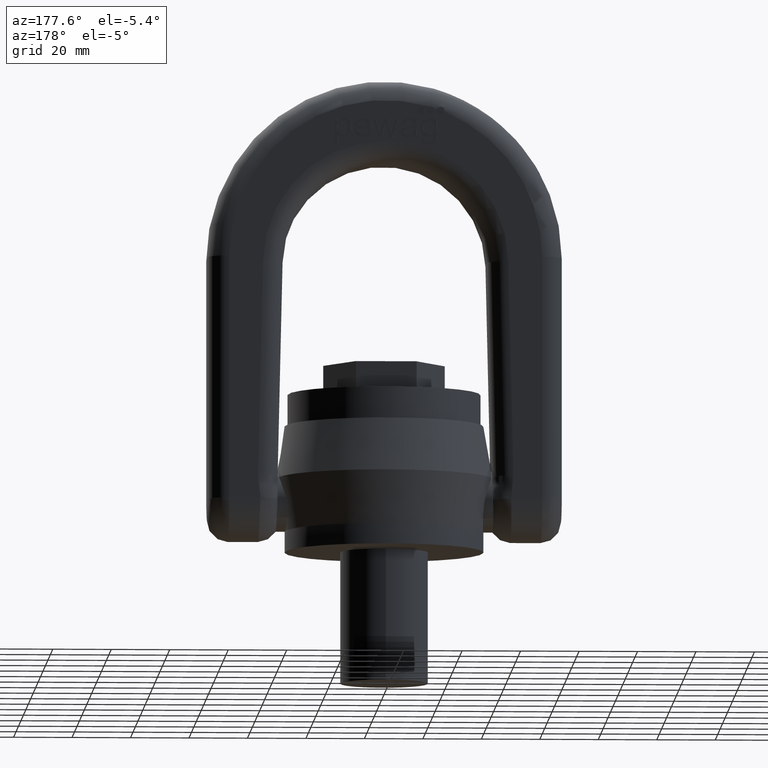
[diagram: clean part render]
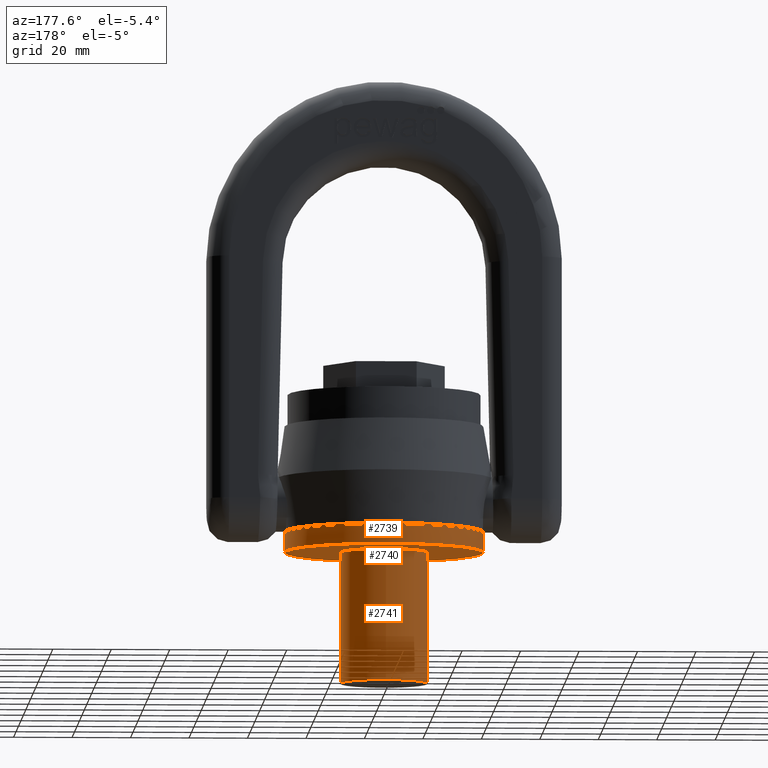
[diagram: same view with one multi-face feature highlighted, each face labeled with its STEP entity id]
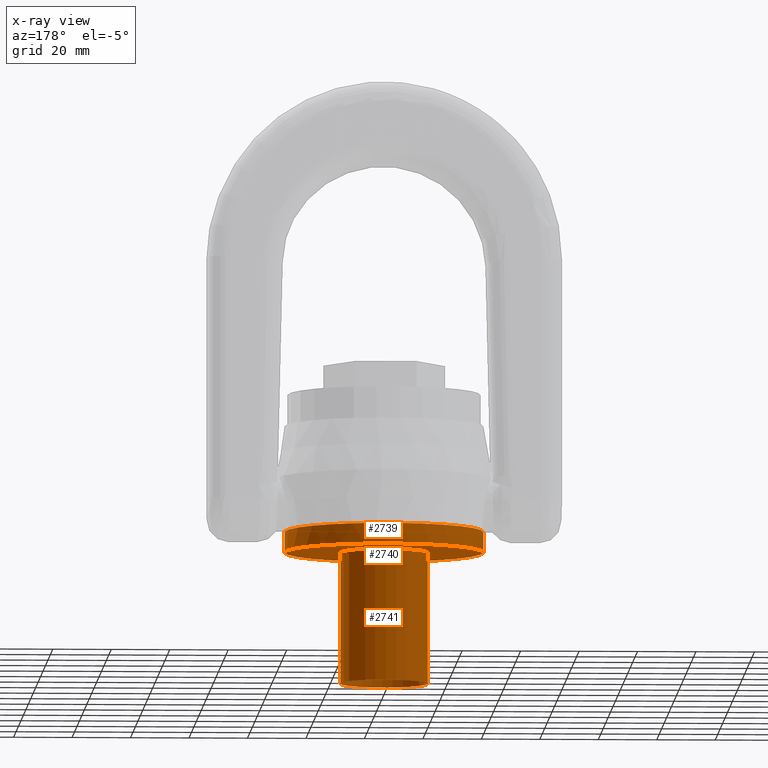
[diagram: x-ray of the same camera — body ghosted, the whole feature saturated]
A machine part, auxiliary view. The highlighted faces form ONE feature: a stepped (counterbored) hole: 2 coaxial cylindrical walls of radii 15 -> 34 mm joined by 1 annular planar shoulder face(s). The faces share edges in the B-rep.
The next image is the same camera in x-ray: the body ghosted and the whole hole feature saturated, so the bore chain is visible through the body.
Their STEP definitions:
[1] entity #2739 (Cylinder):
#2739=ADVANCED_FACE('',(#3001,#3002),#2979,.T.);
#2979=CYLINDRICAL_SURFACE('',#5604,34.);
#3001=FACE_BOUND('',#3063,.T.);
#3002=FACE_BOUND('',#3064,.T.);
#3063=EDGE_LOOP('',(#3339));
#3064=EDGE_LOOP('',(#3340));
#3339=ORIENTED_EDGE('',*,*,#4943,.T.);
#3340=ORIENTED_EDGE('',*,*,#4944,.F.);
#4543=VERTEX_POINT('',#6596);
#4544=VERTEX_POINT('',#6598);
#4943=EDGE_CURVE('',#4543,#4543,#5545,.T.);
#4944=EDGE_CURVE('',#4544,#4544,#5546,.T.);
#5545=CIRCLE('',#5602,34.);
#5546=CIRCLE('',#5603,34.);
#5602=AXIS2_PLACEMENT_3D('',#6595,#5810,#5811);
#5603=AXIS2_PLACEMENT_3D('',#6597,#5812,#5813);
#5604=AXIS2_PLACEMENT_3D('',#6599,#5814,#5815);
#5810=DIRECTION('',(0.,0.,-1.));
#5811=DIRECTION('',(-1.,0.,0.));
#5812=DIRECTION('',(0.,0.,-1.));
#5813=DIRECTION('',(-6.12323399573677E-17,1.,0.));
#5814=DIRECTION('',(0.,0.,-1.));
#5815=DIRECTION('',(-1.,0.,0.));
#6595=CARTESIAN_POINT('',(0.,0.,7.));
#6596=CARTESIAN_POINT('',(-34.,0.,7.));
#6597=CARTESIAN_POINT('',(0.,0.,0.));
#6598=CARTESIAN_POINT('',(-2.0818995585505E-15,34.,0.));
#6599=CARTESIAN_POINT('',(0.,0.,7.));
[2] entity #2741 (Cylinder):
#2741=ADVANCED_FACE('',(#3005,#3006),#2980,.T.);
#2980=CYLINDRICAL_SURFACE('',#5608,15.);
#3005=FACE_BOUND('',#3067,.T.);
#3006=FACE_BOUND('',#3068,.T.);
#3067=EDGE_LOOP('',(#3343));
#3068=EDGE_LOOP('',(#3344));
#3343=ORIENTED_EDGE('',*,*,#4946,.F.);
#3344=ORIENTED_EDGE('',*,*,#4945,.T.);
#4545=VERTEX_POINT('',#6601);
#4546=VERTEX_POINT('',#6604);
#4945=EDGE_CURVE('',#4545,#4545,#5547,.T.);
#4946=EDGE_CURVE('',#4546,#4546,#5548,.T.);
#5547=CIRCLE('',#5605,15.);
#5548=CIRCLE('',#5607,15.);
#5605=AXIS2_PLACEMENT_3D('',#6600,#5816,#5817);
#5607=AXIS2_PLACEMENT_3D('',#6603,#5820,#5821);
#5608=AXIS2_PLACEMENT_3D('',#6605,#5822,#5823);
#5816=DIRECTION('',(0.,0.,-1.));
#5817=DIRECTION('',(-6.12323399573677E-17,1.,0.));
#5820=DIRECTION('',(0.,0.,-1.));
#5821=DIRECTION('',(-6.12323399573677E-17,1.,0.));
#5822=DIRECTION('',(0.,0.,1.));
#5823=DIRECTION('',(1.,0.,0.));
#6600=CARTESIAN_POINT('',(0.,0.,0.));
#6601=CARTESIAN_POINT('',(-9.18485099360515E-16,15.,0.));
#6603=CARTESIAN_POINT('',(0.,0.,-45.));
#6604=CARTESIAN_POINT('',(-9.18485099360515E-16,15.,-45.));
#6605=CARTESIAN_POINT('',(0.,0.,-45.));
[3] entity #2740 (Plane):
#2625=PLANE('',#5606);
#2740=ADVANCED_FACE('',(#3003,#3004),#2625,.T.);
#3003=FACE_BOUND('',#3065,.T.);
#3004=FACE_BOUND('',#3066,.T.);
#3065=EDGE_LOOP('',(#3341));
#3066=EDGE_LOOP('',(#3342));
#3341=ORIENTED_EDGE('',*,*,#4945,.F.);
#3342=ORIENTED_EDGE('',*,*,#4944,.T.);
#4544=VERTEX_POINT('',#6598);
#4545=VERTEX_POINT('',#6601);
#4944=EDGE_CURVE('',#4544,#4544,#5546,.T.);
#4945=EDGE_CURVE('',#4545,#4545,#5547,.T.);
#5546=CIRCLE('',#5603,34.);
#5547=CIRCLE('',#5605,15.);
#5603=AXIS2_PLACEMENT_3D('',#6597,#5812,#5813);
#5605=AXIS2_PLACEMENT_3D('',#6600,#5816,#5817);
#5606=AXIS2_PLACEMENT_3D('',#6602,#5818,#5819);
#5812=DIRECTION('',(0.,0.,-1.));
#5813=DIRECTION('',(-6.12323399573677E-17,1.,0.));
#5816=DIRECTION('',(0.,0.,-1.));
#5817=DIRECTION('',(-6.12323399573677E-17,1.,0.));
#5818=DIRECTION('',(0.,0.,-1.));
#5819=DIRECTION('',(-1.,0.,0.));
#6597=CARTESIAN_POINT('',(0.,0.,0.));
#6598=CARTESIAN_POINT('',(-2.0818995585505E-15,34.,0.));
#6600=CARTESIAN_POINT('',(0.,0.,0.));
#6601=CARTESIAN_POINT('',(-9.18485099360515E-16,15.,0.));
#6602=CARTESIAN_POINT('',(0.,0.,0.));